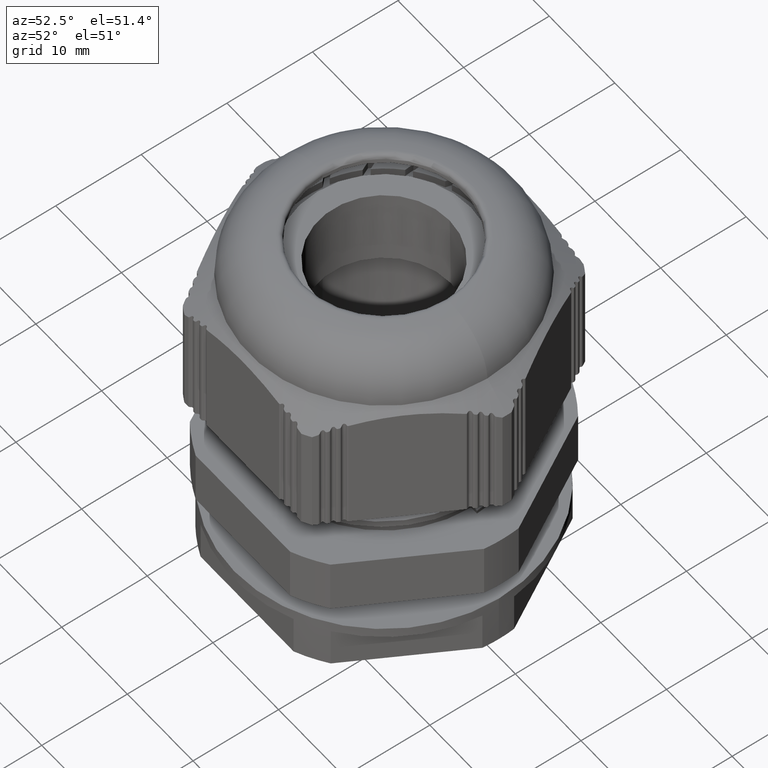
[diagram: clean part render]
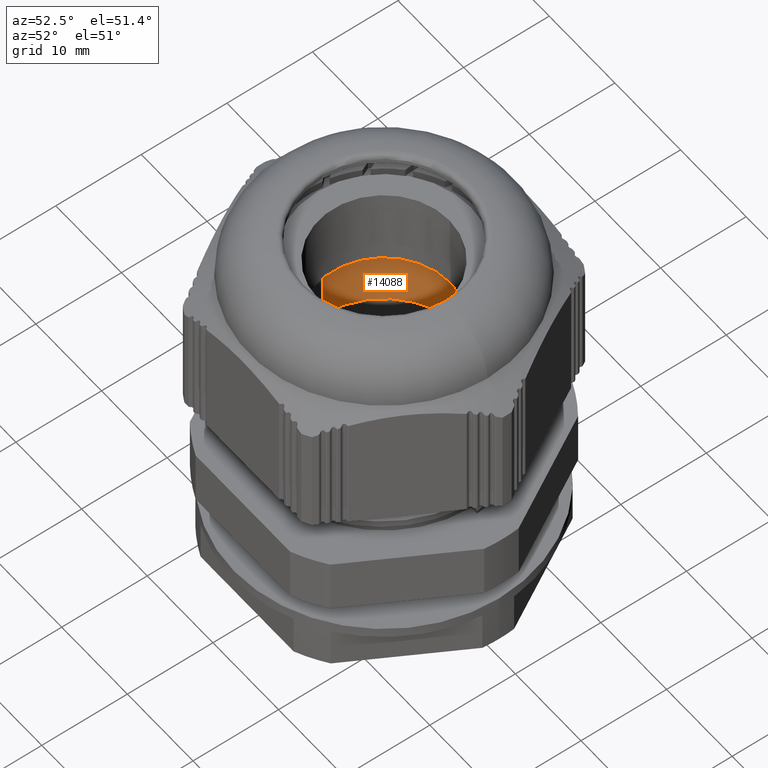
[diagram: same view with one face highlighted and labeled with its STEP entity id]
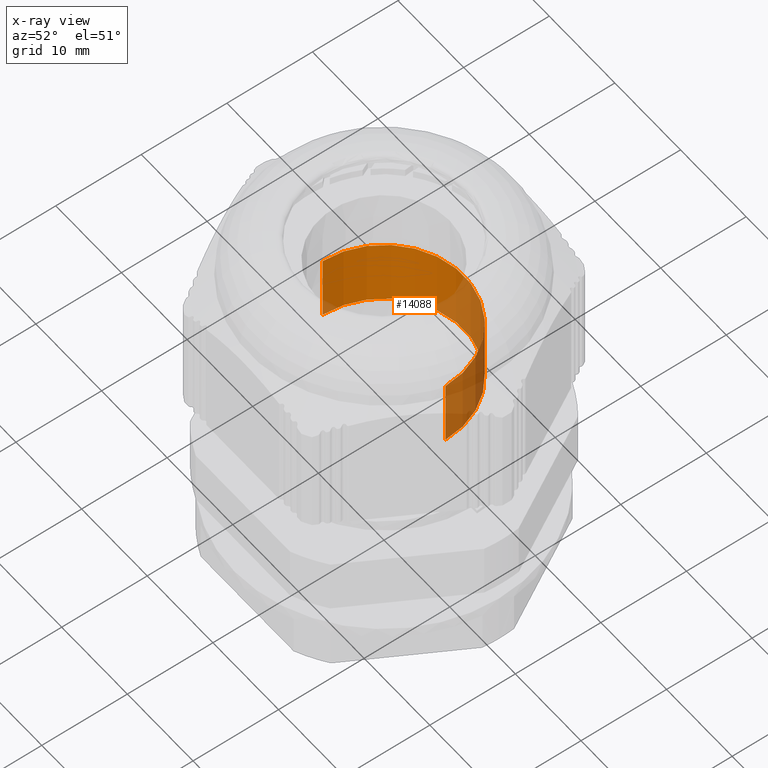
[diagram: x-ray of the same camera — body ghosted, the highlighted face saturated]
A machine part, auxiliary view. The second image highlights one B-rep face of the part: STEP entity #14088.
The next image is the same camera in x-ray: the body ghosted, the highlighted face saturated — about 37% of this face is hidden behind the body in this view.
In plain terms, the highlighted cylindrical surface (partial cylindrical patch) has radius 9.35 mm, axis along (0, 0, -1).
Its self-contained STEP definition (entity closure, byte-faithful):
#1367 = VERTEX_POINT ( 'NONE', #8348 ) ;
#1406 = VERTEX_POINT ( 'NONE', #8375 ) ;
#1411 = VERTEX_POINT ( 'NONE', #8384 ) ;
#1420 = VERTEX_POINT ( 'NONE', #8391 ) ;
#1786 = DIRECTION ( 'NONE',  ( 0.0000000000000000000, 0.0000000000000000000, -1.000000000000000000 ) ) ;
#1802 = CARTESIAN_POINT ( 'NONE',  ( -9.350000000000001400, 0.0000000000000000000, 36.21844550262504500 ) ) ;
#1809 = LINE ( 'NONE', #1802, #12986 ) ;
#2075 = LINE ( 'NONE', #2084, #12889 ) ;
#2084 = CARTESIAN_POINT ( 'NONE',  ( 9.350000000000001400, 1.145044757202775400E-015, 36.21844550262504500 ) ) ;
#2094 = DIRECTION ( 'NONE',  ( 0.0000000000000000000, 0.0000000000000000000, -1.000000000000000000 ) ) ;
#2614 = EDGE_CURVE ( 'NONE', #1367, #1420, #1809, .T. ) ;
#2661 = EDGE_CURVE ( 'NONE', #1406, #1411, #2075, .T. ) ;
#3027 = CIRCLE ( 'NONE', #3029, 9.350000000000001400 ) ;
#3029 = AXIS2_PLACEMENT_3D ( 'NONE', #5927, #5928, #5948 ) ;
#3030 = AXIS2_PLACEMENT_3D ( 'NONE', #5949, #5931, #5940 ) ;
#3044 = CIRCLE ( 'NONE', #3030, 9.350000000000001400 ) ;
#3233 = ORIENTED_EDGE ( 'NONE', *, *, #2614, .T. ) ;
#3235 = ORIENTED_EDGE ( 'NONE', *, *, #13798, .F. ) ;
#3271 = ORIENTED_EDGE ( 'NONE', *, *, #2661, .F. ) ;
#3404 = ORIENTED_EDGE ( 'NONE', *, *, #13801, .F. ) ;
#3463 = AXIS2_PLACEMENT_3D ( 'NONE', #9626, #9596, #9590 ) ;
#5927 = CARTESIAN_POINT ( 'NONE',  ( 0.0000000000000000000, 0.0000000000000000000, 23.17108913028694100 ) ) ;
#5928 = DIRECTION ( 'NONE',  ( -0.0000000000000000000, -0.0000000000000000000, 1.000000000000000000 ) ) ;
#5931 = DIRECTION ( 'NONE',  ( 0.0000000000000000000, 0.0000000000000000000, -1.000000000000000000 ) ) ;
#5940 = DIRECTION ( 'NONE',  ( -1.000000000000000000, 0.0000000000000000000, 0.0000000000000000000 ) ) ;
#5948 = DIRECTION ( 'NONE',  ( -1.000000000000000000, 0.0000000000000000000, 0.0000000000000000000 ) ) ;
#5949 = CARTESIAN_POINT ( 'NONE',  ( 0.0000000000000000000, 0.0000000000000000000, 31.15000000001445500 ) ) ;
#8348 = CARTESIAN_POINT ( 'NONE',  ( -9.350000000000001400, 0.0000000000000000000, 31.15000000001445500 ) ) ;
#8375 = CARTESIAN_POINT ( 'NONE',  ( 9.350000000000001400, 1.145044757202775400E-015, 31.15000000001445500 ) ) ;
#8384 = CARTESIAN_POINT ( 'NONE',  ( 9.350000000000001400, 1.145044757202775400E-015, 23.17108913028694100 ) ) ;
#8391 = CARTESIAN_POINT ( 'NONE',  ( -9.350000000000001400, 0.0000000000000000000, 23.17108913028694100 ) ) ;
#9590 = DIRECTION ( 'NONE',  ( -1.000000000000000000, 0.0000000000000000000, 0.0000000000000000000 ) ) ;
#9596 = DIRECTION ( 'NONE',  ( 0.0000000000000000000, 0.0000000000000000000, -1.000000000000000000 ) ) ;
#9621 = FACE_OUTER_BOUND ( 'NONE', #10500, .T. ) ;
#9622 = CYLINDRICAL_SURFACE ( 'NONE', #3463, 9.350000000000001400 ) ;
#9626 = CARTESIAN_POINT ( 'NONE',  ( 0.0000000000000000000, 0.0000000000000000000, 36.21844550262504500 ) ) ;
#10500 = EDGE_LOOP ( 'NONE', ( #3271, #3404, #3233, #3235 ) ) ;
#12889 = VECTOR ( 'NONE', #2094, 1000.000000000000000 ) ;
#12986 = VECTOR ( 'NONE', #1786, 1000.000000000000000 ) ;
#13798 = EDGE_CURVE ( 'NONE', #1411, #1420, #3027, .T. ) ;
#13801 = EDGE_CURVE ( 'NONE', #1367, #1406, #3044, .T. ) ;
#14088 = ADVANCED_FACE ( 'NONE', ( #9621 ), #9622, .F. ) ;